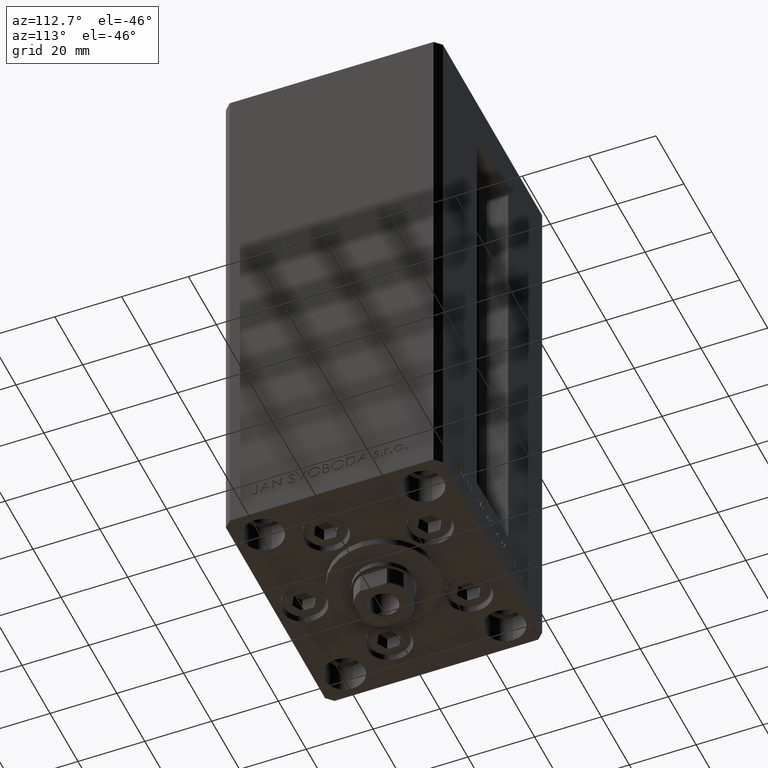
[diagram: clean part render]
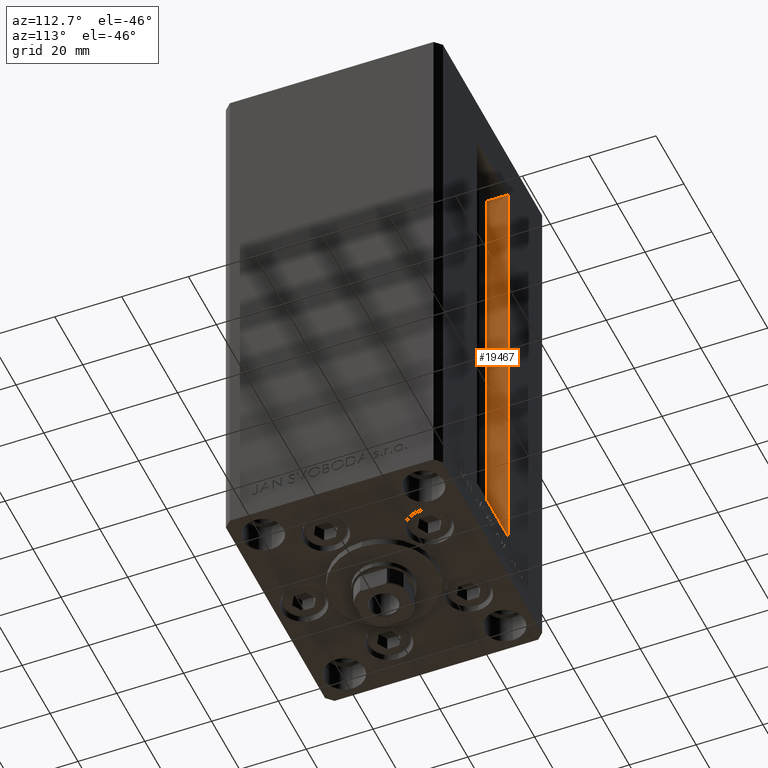
[diagram: same view with one face highlighted and labeled with its STEP entity id]
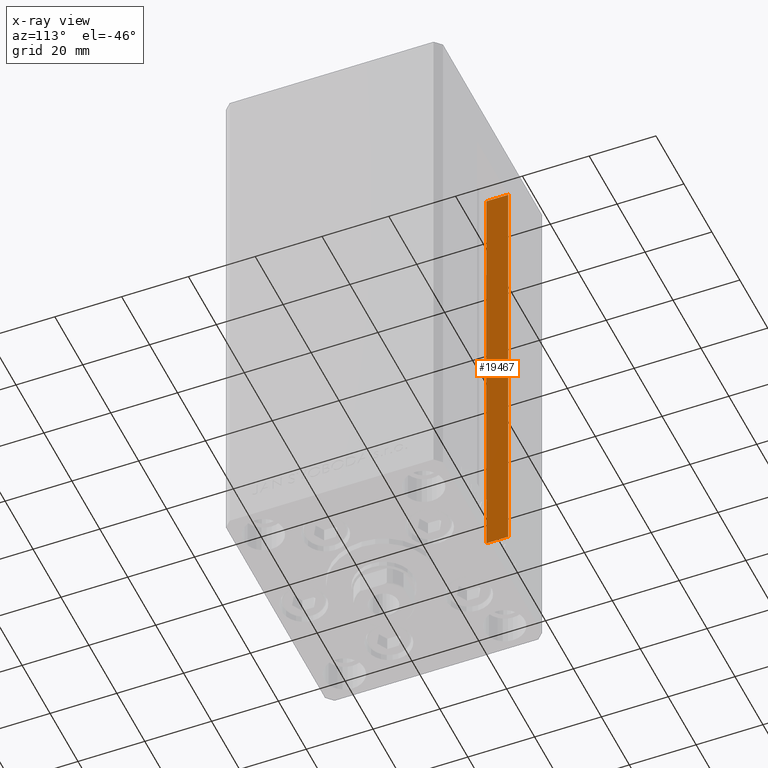
[diagram: x-ray of the same camera — body ghosted, the highlighted face saturated]
A machine part, auxiliary view. The second image highlights one B-rep face of the part: STEP entity #19467.
The next image is the same camera in x-ray: the body ghosted, the highlighted face saturated — about 0% of this face is hidden behind the body in this view.
In plain terms, the highlighted planar face has unit normal (-1, 0, 0).
Its self-contained STEP definition (entity closure, byte-faithful):
#622 = DIRECTION ( 'NONE',  ( -0.000000000000000000, -1.000000000000000000, -0.000000000000000000 ) ) ;
#723 = ORIENTED_EDGE ( 'NONE', *, *, #22490, .T. ) ;
#894 = CARTESIAN_POINT ( 'NONE',  ( -11.25000000000000178, 32.49999999999999289, 0.000000000000000000 ) ) ;
#4908 = CARTESIAN_POINT ( 'NONE',  ( -11.25000000000000178, 32.49999999999999289, 0.000000000000000000 ) ) ;
#5069 = VERTEX_POINT ( 'NONE', #8752 ) ;
#5850 = DIRECTION ( 'NONE',  ( -0.000000000000000000, -0.000000000000000000, 1.000000000000000000 ) ) ;
#8258 = CARTESIAN_POINT ( 'NONE',  ( -11.25000000000000178, 25.99999999999999289, 0.000000000000000000 ) ) ;
#8420 = DIRECTION ( 'NONE',  ( -0.000000000000000000, -0.000000000000000000, 1.000000000000000000 ) ) ;
#8750 = PLANE ( 'NONE',  #47198 ) ;
#8752 = CARTESIAN_POINT ( 'NONE',  ( -11.25000000000000178, 25.99999999999999289, 136.0000000000000000 ) ) ;
#9058 = EDGE_CURVE ( 'NONE', #23740, #5069, #32712, .T. ) ;
#15149 = EDGE_CURVE ( 'NONE', #24470, #23740, #31244, .T. ) ;
#16040 = DIRECTION ( 'NONE',  ( 0.000000000000000000, 0.000000000000000000, 1.000000000000000000 ) ) ;
#17092 = ORIENTED_EDGE ( 'NONE', *, *, #33073, .F. ) ;
#18382 = VECTOR ( 'NONE', #8420, 1000.000000000000000 ) ;
#18880 = VECTOR ( 'NONE', #5850, 1000.000000000000000 ) ;
#19467 = ADVANCED_FACE ( 'NONE', ( #20302 ), #8750, .F. ) ;
#20302 = FACE_OUTER_BOUND ( 'NONE', #24017, .T. ) ;
#20777 = ORIENTED_EDGE ( 'NONE', *, *, #9058, .F. ) ;
#22490 = EDGE_CURVE ( 'NONE', #24470, #35820, #39295, .T. ) ;
#23421 = VECTOR ( 'NONE', #49013, 1000.000000000000000 ) ;
#23740 = VERTEX_POINT ( 'NONE', #47233 ) ;
#24017 = EDGE_LOOP ( 'NONE', ( #20777, #45920, #723, #17092 ) ) ;
#24470 = VERTEX_POINT ( 'NONE', #4908 ) ;
#31244 = LINE ( 'NONE', #34505, #45456 ) ;
#32712 = LINE ( 'NONE', #47555, #18880 ) ;
#33073 = EDGE_CURVE ( 'NONE', #5069, #35820, #49500, .T. ) ;
#34505 = CARTESIAN_POINT ( 'NONE',  ( -11.25000000000000178, 25.99999999999999289, 0.000000000000000000 ) ) ;
#35820 = VERTEX_POINT ( 'NONE', #38951 ) ;
#37917 = CARTESIAN_POINT ( 'NONE',  ( -11.25000000000000178, 0.000000000000000000, 136.0000000000000000 ) ) ;
#38951 = CARTESIAN_POINT ( 'NONE',  ( -11.25000000000000178, 32.49999999999999289, 136.0000000000000000 ) ) ;
#39295 = LINE ( 'NONE', #894, #18382 ) ;
#43401 = DIRECTION ( 'NONE',  ( -1.000000000000000000, 0.000000000000000000, 0.000000000000000000 ) ) ;
#45456 = VECTOR ( 'NONE', #622, 1000.000000000000000 ) ;
#45920 = ORIENTED_EDGE ( 'NONE', *, *, #15149, .F. ) ;
#47198 = AXIS2_PLACEMENT_3D ( 'NONE', #8258, #43401, #16040 ) ;
#47233 = CARTESIAN_POINT ( 'NONE',  ( -11.25000000000000178, 25.99999999999999289, 0.000000000000000000 ) ) ;
#47555 = CARTESIAN_POINT ( 'NONE',  ( -11.25000000000000178, 25.99999999999999289, 0.000000000000000000 ) ) ;
#49013 = DIRECTION ( 'NONE',  ( 0.000000000000000000, 1.000000000000000000, 0.000000000000000000 ) ) ;
#49500 = LINE ( 'NONE', #37917, #23421 ) ;